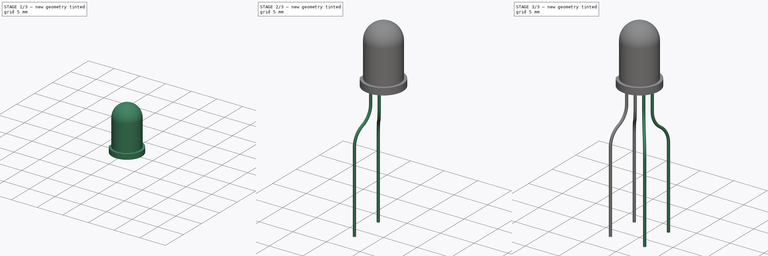
[diagram: build sequence overview — one tinted view per stage of 3, left to right]
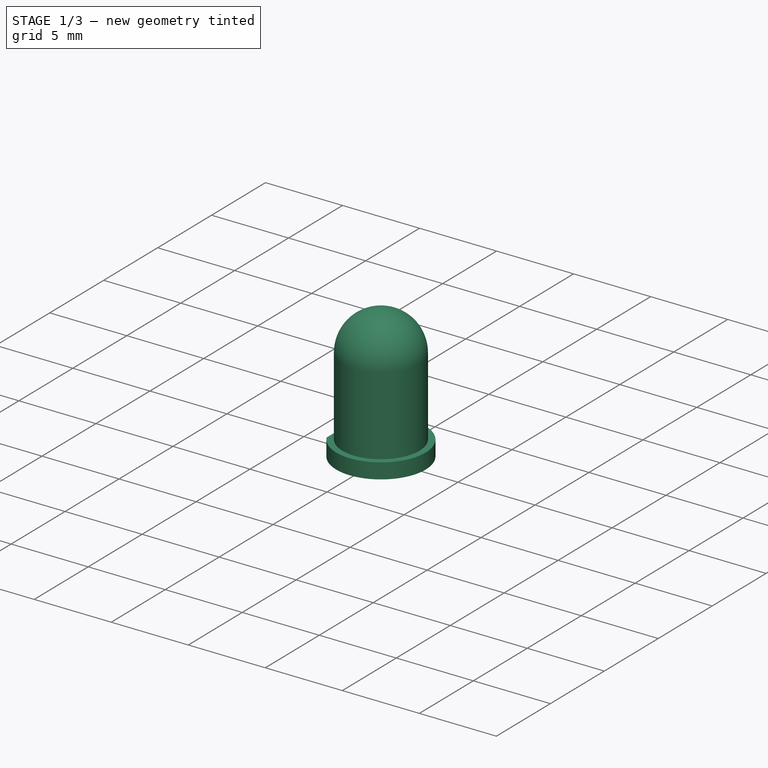
[diagram: stage 1 of 3 — iso view after this stage's code; geometry added in this stage tinted green]
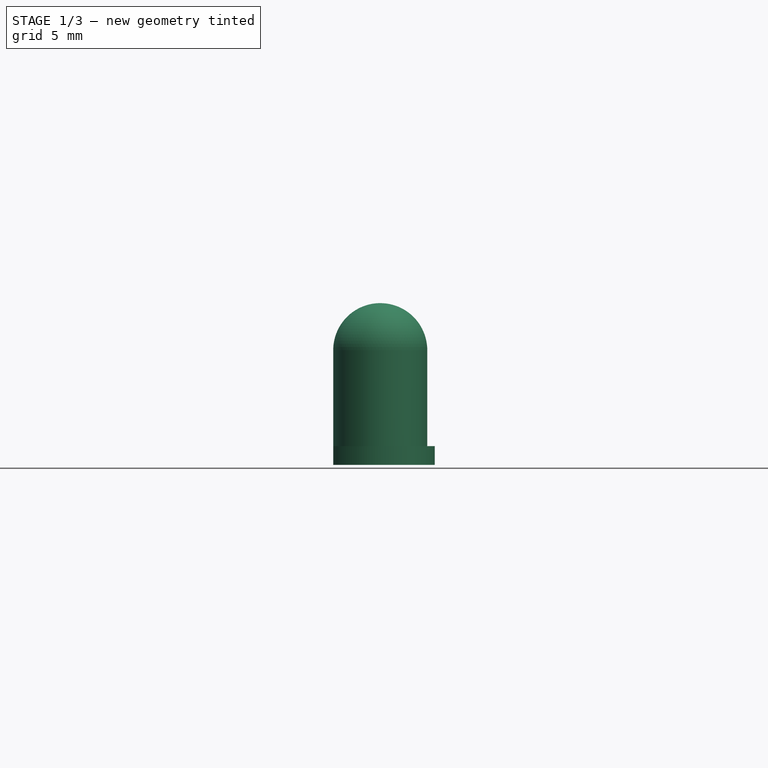
[diagram: stage 1 of 3 — front view after this stage's code; geometry added in this stage tinted green]
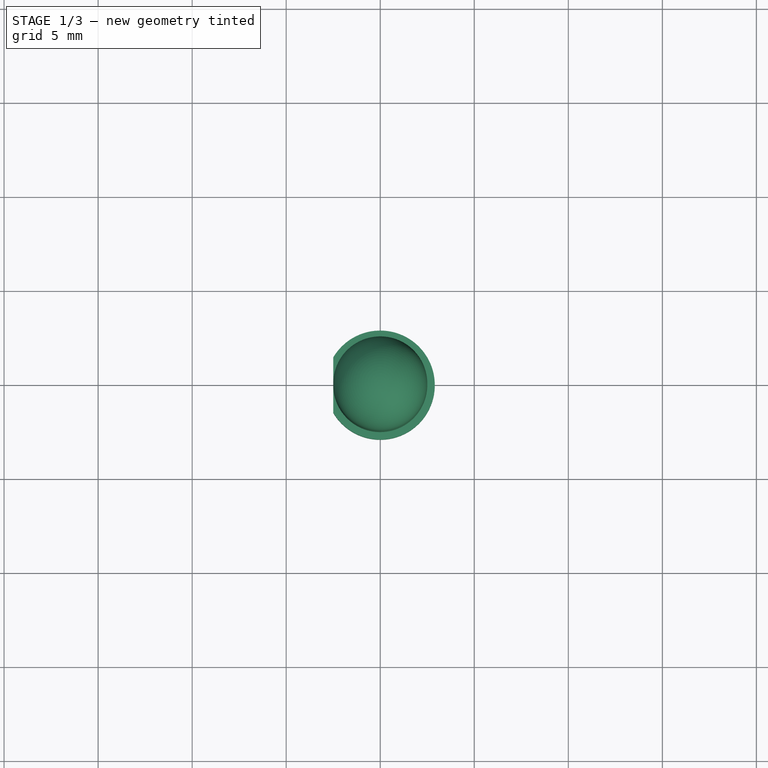
[diagram: stage 1 of 3 — top view after this stage's code; geometry added in this stage tinted green]
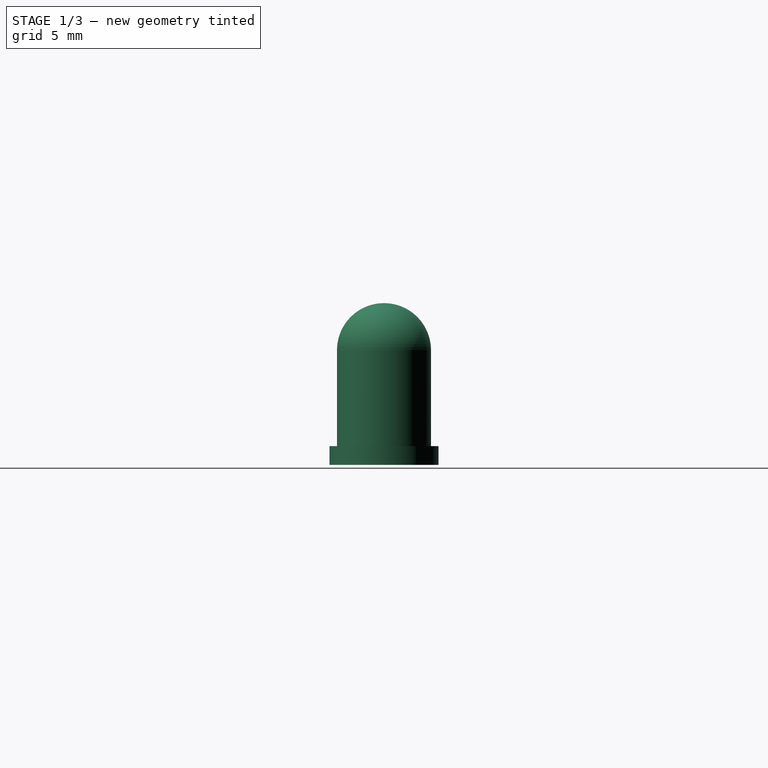
[diagram: stage 1 of 3 — right view after this stage's code; geometry added in this stage tinted green]
FCSTD DOCUMENT  (FreeCAD 2022.709R28846 (Git))
Label: LED_5mm_RGB
License: Other
objects: Sketcher::SketchObject×17, Part::Sweep×4, Part::Feature×1, PartDesign::Pad×1, PartDesign::Plane×1, PartDesign::Revolution×1, PartDesign::Body×1
note: 30 computed .brp shape members not serialized (recipe doc carries the construction recipe); baked Part::Feature solids carry a one-line shape summary decoded from their .brp

FEATURE [Sketcher::SketchObject] Sketch
  ArcFitTolerance = 1e-06
  AttachmentSupport = -> [XY_Plane]
  FullyConstrained = true
  MapMode = 5
  Support = -> [XY_Plane]
  TreeRank = 41
  sketch-geometry (3):
    g0: ArcOfCircle CenterX=0 CenterY=0 CenterZ=0 NormalX=0 NormalY=0 NormalZ=1 AngleXU=0 Radius=2.9 StartAngle=3.67305 EndAngle=8.89332
    g1: Circle [constr] CenterX=0 CenterY=0 CenterZ=0 NormalX=0 NormalY=0 NormalZ=1 AngleXU=0 Radius=2.5
    g2: LineSegment StartX=-2.5 StartY=1.46969 StartZ=0 EndX=-2.5 EndY=-1.46969 EndZ=0
  constraints (8):
    c: Coincident(g0,g-1)
    c: Coincident(g1,g0)
    c: Diameter(g1) = 5
    c: Diameter(g0) = 5.8
    c: Vertical(g2)
    c: Tangent(g2,g1)
    c: Coincident(g0,g2)
    c: Coincident(g0,g2)
FEATURE [PartDesign::Pad] Pad
  ClaimChildren = false
  Direction = (1,1,1)
  Fit = 0
  FitJoin = 0
  InnerFit = 0
  InnerFitJoin = 0
  InnerTaperAngle = 0
  InnerTaperAngleRev = 0
  Length = 1
  Length2 = 100
  Linearize = true
  NewSolid = false
  Profile = -> Sketch
  Suppress = false
  TreeRank = 42
  Type = 0
  _ProfileBasedVersion = 1
FEATURE [PartDesign::Plane] DatumPlane
  AttachmentOffset = pos=(0,0,0) rot=(1,0,0;1.5708rad)
  AttachmentSupport = -> [Pad]
  Length = 50
  MapMode = 5
  MinimumLength = 10
  MinimumWidth = 10
  Placement = pos=(0,0,1) rot=(1,0,0;1.5708rad)
  ResizeMode = 0
  Support = -> [Pad]
  TreeRank = 43
  Width = 10
FEATURE [Sketcher::SketchObject] Sketch001
  ArcFitTolerance = 1e-06
  AttachmentSupport = -> [DatumPlane]
  ExternalGeometry = -> [Pad]
  FullyConstrained = true
  MapMode = 5
  Placement = pos=(0,0,1) rot=(1,0,0;1.5708rad)
  Support = -> [DatumPlane]
  TreeRank = 44
  sketch-geometry (4):
    g0: LineSegment StartX=0 StartY=7.6 StartZ=0 EndX=0 EndY=0 EndZ=0
    g1: LineSegment StartX=0 StartY=0 StartZ=0 EndX=-2.5 EndY=-3e-16 EndZ=0
    g2: LineSegment StartX=-2.5 StartY=-3e-16 StartZ=0 EndX=-2.5 EndY=5.1 EndZ=0
    g3: ArcOfCircle CenterX=0 CenterY=5.1 CenterZ=0 NormalX=0 NormalY=0 NormalZ=1 AngleXU=0 Radius=2.5 StartAngle=1.5708 EndAngle=3.14159
  constraints (10):
    c: PointOnObject(g0,g-2)
    c: Coincident(g0,g-1)
    c: Coincident(g0,g1)
    c: Coincident(g1,g-3)
    c: Coincident(g1,g2)
    c: Vertical(g2)
    c: Tangent(g2,g3) = 1.5708
    c: Coincident(g3,g0)
    c: PointOnObject(g3,g0)
    c: DistanceY(g0,g0) = 7.6
FEATURE [PartDesign::Revolution] Revolution
  Angle = 360
  Axis = (0,2e-16,1)
  Base = (0,0,1)
  BaseFeature = -> Pad
  ClaimChildren = false
  Fit = 0
  FitJoin = 0
  InnerFit = 0
  InnerFitJoin = 0
  NewSolid = false
  Profile = -> Sketch001
  ReferenceAxis = -> Sketch001 [V_Axis]
  Refine = true
  Suppress = false
  TreeRank = 45
  _ProfileBasedVersion = 1
FEATURE [PartDesign::Body] Body
  AutoGroupSolids = false
  ClaimAllChildren = false
  ExportMode = 0
  Group = -> [Sketch,Pad,DatumPlane,Sketch001,Revolution]
  Origin = -> Origin
  Tip = -> Revolution
  TreeRank = 58
  _ExportChildren = -> [Pad,DatumPlane,Revolution]
  _GroupVersion = 1
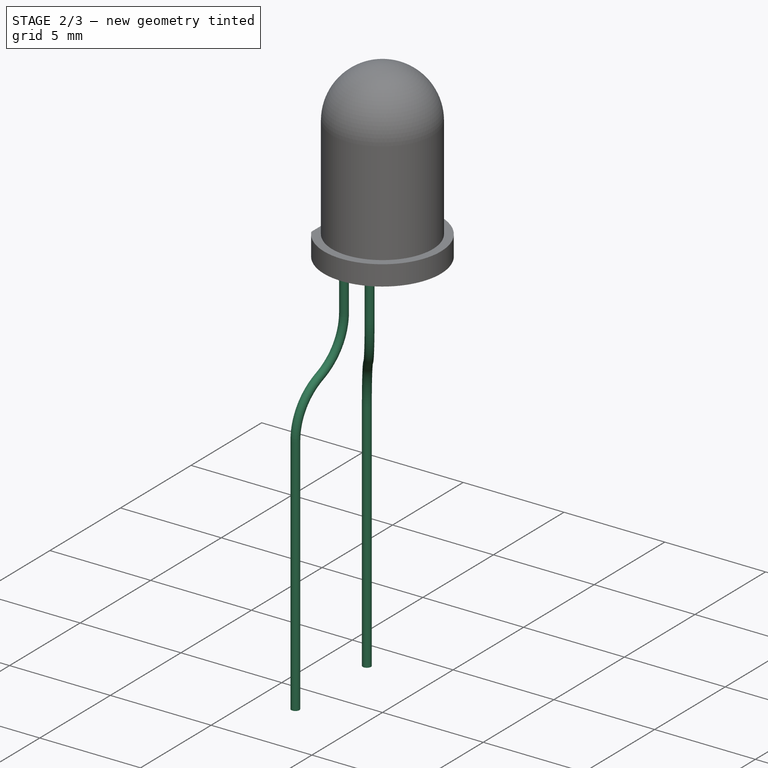
[diagram: stage 2 of 3 — iso view after this stage's code; geometry added in this stage tinted green]
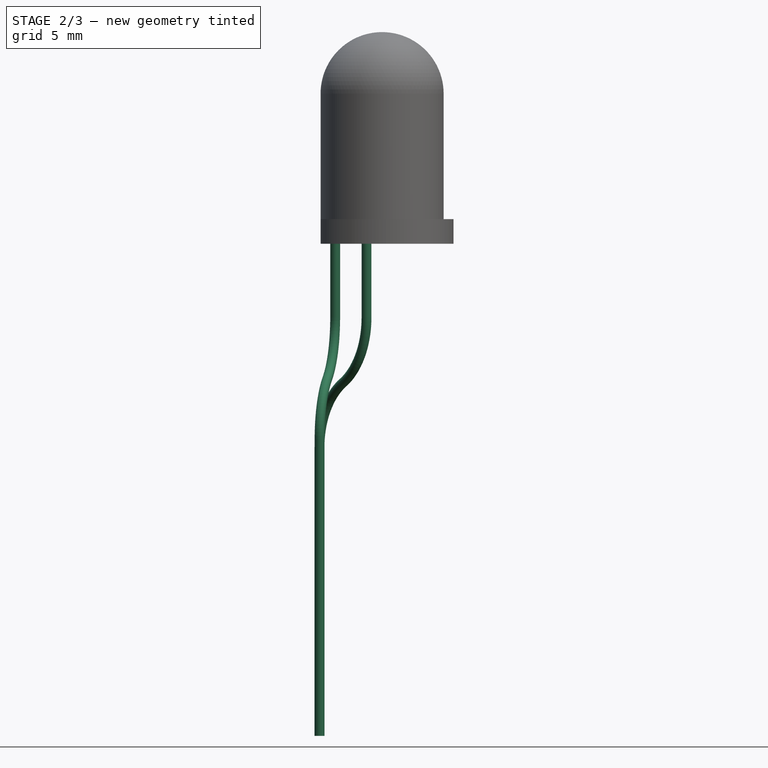
[diagram: stage 2 of 3 — front view after this stage's code; geometry added in this stage tinted green]
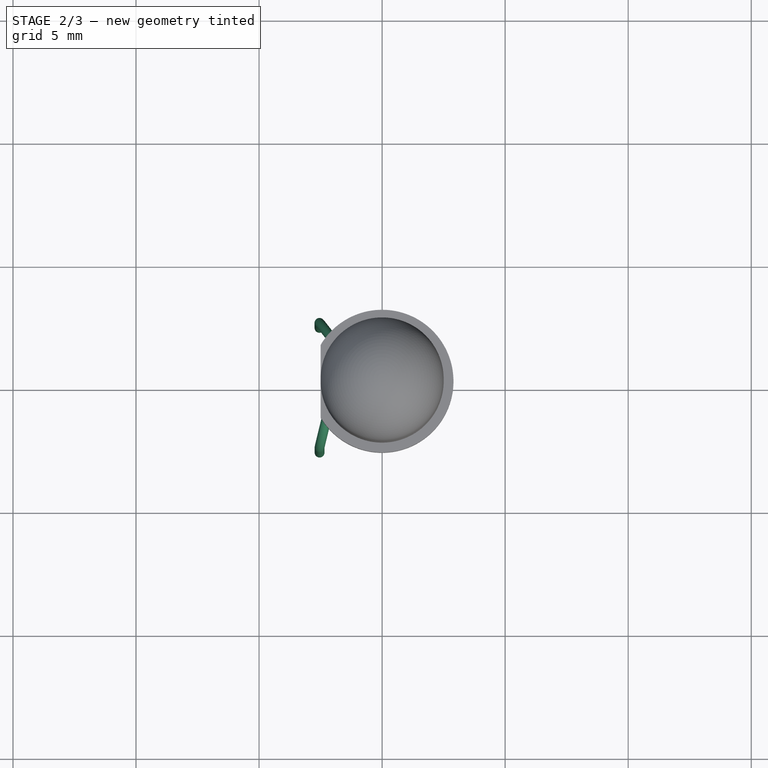
[diagram: stage 2 of 3 — top view after this stage's code; geometry added in this stage tinted green]
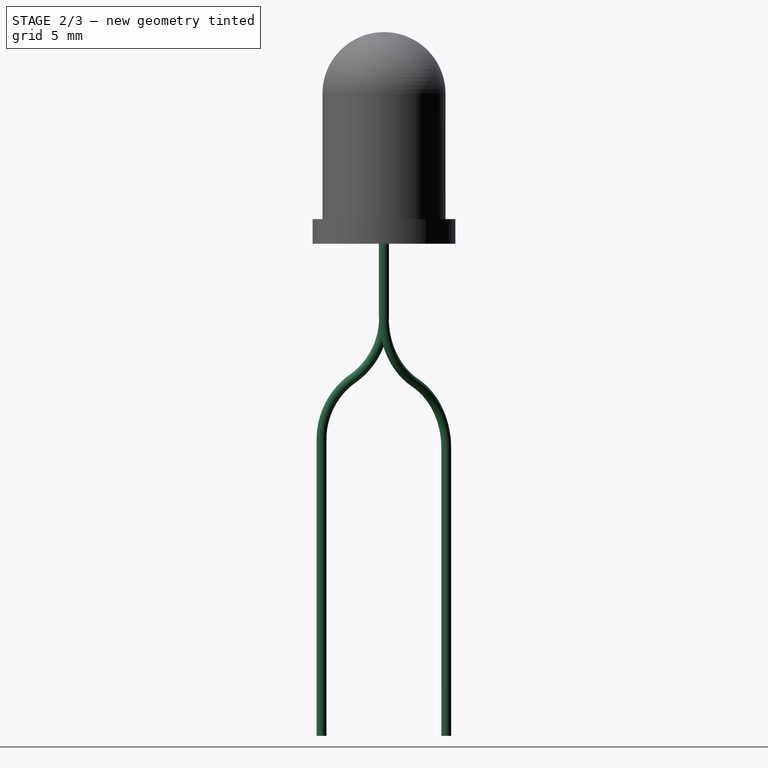
[diagram: stage 2 of 3 — right view after this stage's code; geometry added in this stage tinted green]
FEATURE [Part::Sweep] Sweep002
  Frenet = false
  Placement = pos=(-0.127288,0.3763,-7.1e-15) rot=(0,0,1;0.645772rad)
  Sections = -> [Sketch014]
  Solid = true
  Spine = -> Sketch007 [Edge1,Edge2,Edge3,Edge4]
  Transition = 1
  TreeRank = 56
FEATURE [Part::Sweep] Sweep003
  Frenet = false
  Placement = pos=(-0.0595809,-0.459285,0) rot=(0,0,-1;0.244346rad)
  Sections = -> [Sketch013]
  Solid = true
  Spine = -> Sketch008 [Edge1,Edge2,Edge3,Edge4]
  Transition = 1
  TreeRank = 57
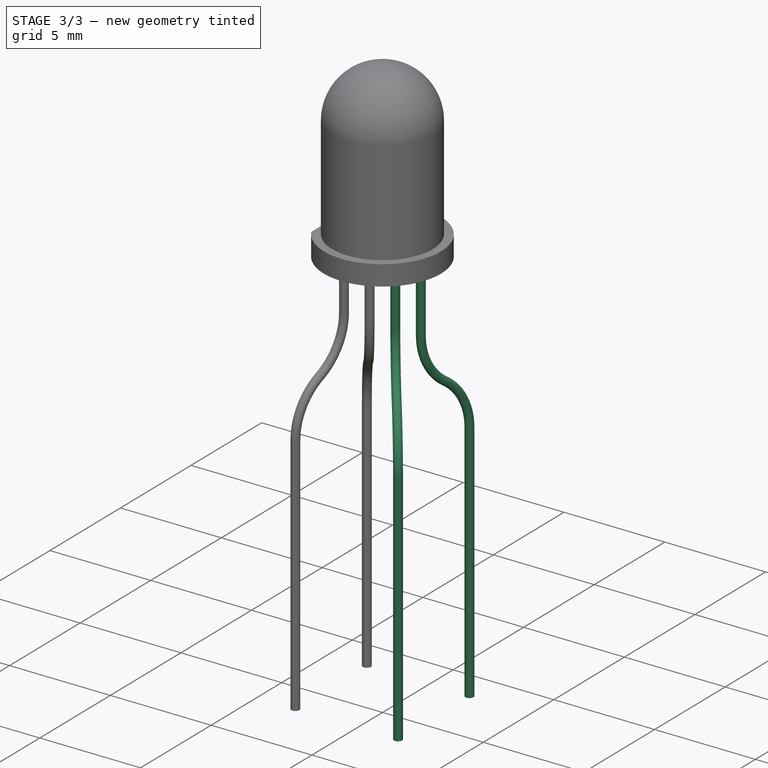
[diagram: stage 3 of 3 — iso view after this stage's code; geometry added in this stage tinted green]
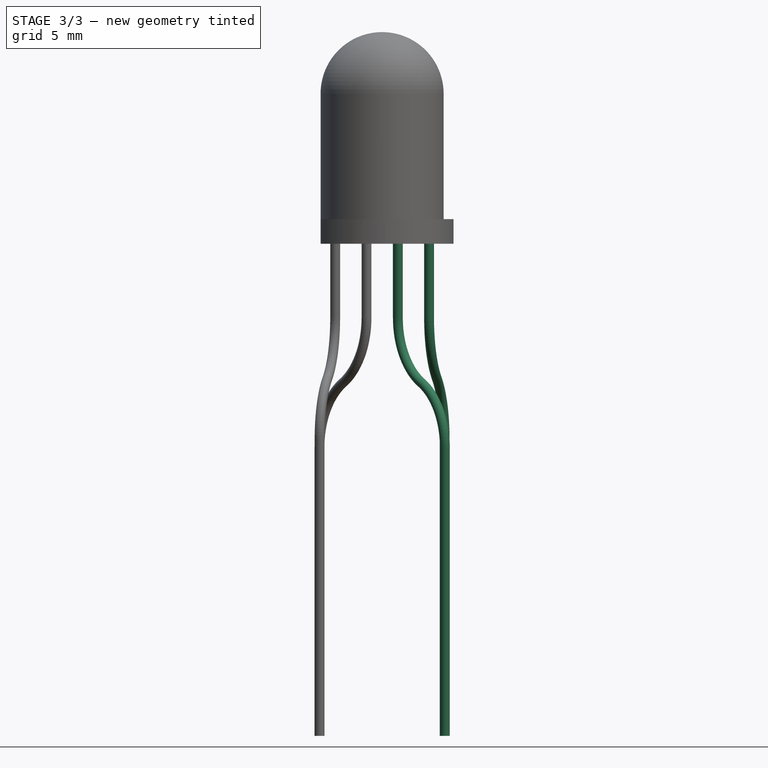
[diagram: stage 3 of 3 — front view after this stage's code; geometry added in this stage tinted green]
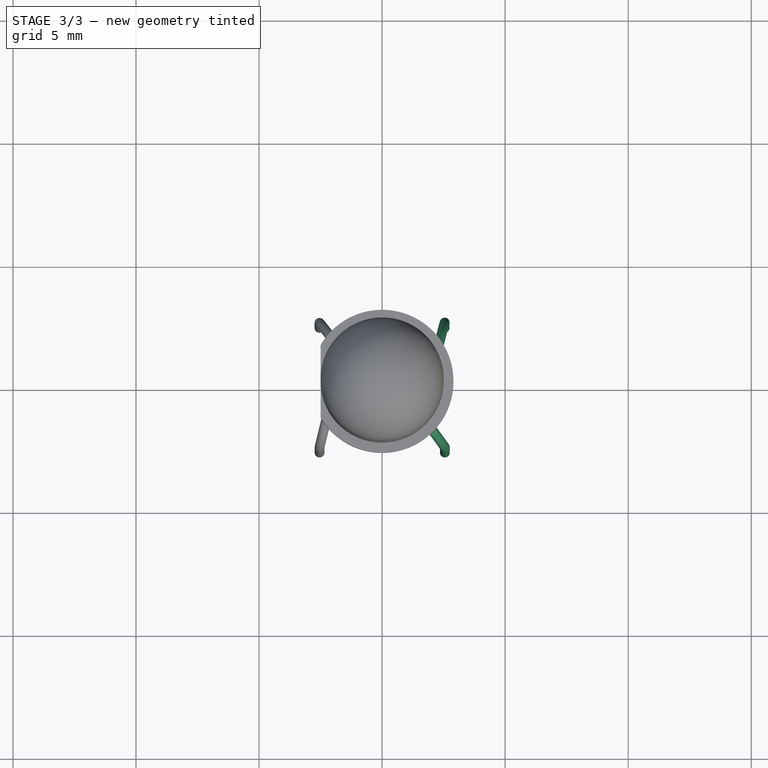
[diagram: stage 3 of 3 — top view after this stage's code; geometry added in this stage tinted green]
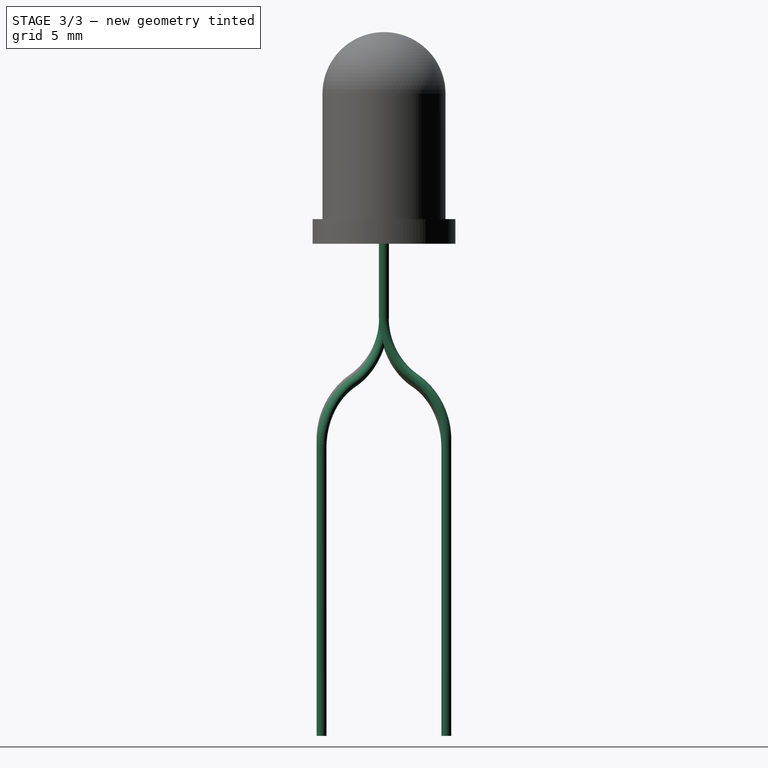
[diagram: stage 3 of 3 — right view after this stage's code; geometry added in this stage tinted green]
FEATURE [Part::Feature] Solid  label="LED_D5.0mm-4_RGB_Staggered_Pins"
  TreeRank = 1
  shape: bbox 5.513 x 5.8 x 15.6 mm, 58 faces (baked)
FEATURE [Sketcher::SketchObject] Sketch002
  ArcFitTolerance = 1e-06
  FullyConstrained = true
  TreeRank = 40
  sketch-geometry (20):
    g0: Circle CenterX=-2.54 CenterY=2.54 CenterZ=0 NormalX=0 NormalY=0 NormalZ=1 AngleXU=0 Radius=0.2
    g1: Circle CenterX=2.54 CenterY=2.54 CenterZ=0 NormalX=0 NormalY=0 NormalZ=1 AngleXU=0 Radius=0.2
    g2: Circle CenterX=2.54 CenterY=-2.54 CenterZ=0 NormalX=0 NormalY=0 NormalZ=1 AngleXU=0 Radius=0.2
    g3: Circle CenterX=-2.54 CenterY=-2.54 CenterZ=0 NormalX=0 NormalY=0 NormalZ=1 AngleXU=0 Radius=0.2
    g4: Circle CenterX=-1.905 CenterY=0 CenterZ=0 NormalX=0 NormalY=0 NormalZ=1 AngleXU=0 Radius=0.2
    g5: Circle CenterX=-0.635 CenterY=0 CenterZ=0 NormalX=0 NormalY=0 NormalZ=1 AngleXU=0 Radius=0.2
    g6: Circle CenterX=0.635 CenterY=0 CenterZ=0 NormalX=0 NormalY=0 NormalZ=1 AngleXU=0 Radius=0.2
    g7: Circle CenterX=1.905 CenterY=0 CenterZ=0 NormalX=0 NormalY=0 NormalZ=1 AngleXU=0 Radius=0.2
    g8: LineSegment StartX=-1.905 StartY=0 StartZ=0 EndX=-1.905 EndY=-2.61817 EndZ=0
    g9: LineSegment StartX=-0.635 StartY=0 StartZ=0 EndX=-0.635 EndY=3.175 EndZ=0
    g10: LineSegment StartX=0.635 StartY=0 StartZ=0 EndX=0.635 EndY=-3.175 EndZ=0
    g11: ArcOfCircle CenterX=-1.905 CenterY=0 CenterZ=0 NormalX=0 NormalY=0 NormalZ=1 AngleXU=0 Radius=2.61817 StartAngle=4.46741 EndAngle=4.71239
    g12: ArcOfCircle CenterX=-0.635 CenterY=0 CenterZ=0 NormalX=0 NormalY=0 NormalZ=1 AngleXU=0 Radius=3.175 StartAngle=1.5708 EndAngle=2.2143
    g13: ArcOfCircle CenterX=0.635 CenterY=0 CenterZ=0 NormalX=0 NormalY=0 NormalZ=1 AngleXU=0 Radius=3.175 StartAngle=4.71239 EndAngle=5.35589
    g14: ArcOfCircle CenterX=1.905 CenterY=0 CenterZ=0 NormalX=0 NormalY=0 NormalZ=1 AngleXU=0 Radius=2.61817 StartAngle=1.32582 EndAngle=1.5708
    g15: LineSegment StartX=-1.905 StartY=0 StartZ=0 EndX=-2.54 EndY=-2.54 EndZ=0
    g16: LineSegment StartX=-0.635 StartY=0 StartZ=0 EndX=-2.54 EndY=2.54 EndZ=0
    g17: LineSegment StartX=0.635 StartY=0 StartZ=0 EndX=2.54 EndY=-2.54 EndZ=0
    g18: LineSegment StartX=1.905 StartY=0 StartZ=0 EndX=2.54 EndY=2.54 EndZ=0
    g19: LineSegment StartX=1.905 StartY=0 StartZ=0 EndX=1.905 EndY=2.61817 EndZ=0
  constraints (48):
    c: Diameter(g3) = 0.4
    c: Equal(g3,g0)
    c: Equal(g3,g1)
    c: Equal(g3,g2)
    c: Symmetric(g0,g1,g-2)
    c: Symmetric(g3,g2,g-2)
    c: Symmetric(g3,g0,g-1)
    c: DistanceX(g0,g1) = 5.08
    c: DistanceY(g3,g0) = 5.08
    c: PointOnObject(g4,g-1)
    c: PointOnObject(g5,g-1)
    c: Equal(g4,g5)
    c: Equal(g5,g6)
    c: Equal(g6,g7)
    c: Equal(g7,g3)
    c: Symmetric(g5,g6,g-2)
    c: Symmetric(g4,g7,g-2)
    c: DistanceX(g5,g6) = 1.27
    c: DistanceX(g4,g5) = 1.27
    c: Coincident(g8,g4)
    c: Vertical(g8)
    c: Coincident(g9,g5)
    c: Vertical(g9)
    c: Coincident(g10,g6)
    c: Vertical(g10)
    c: Coincident(g11,g4)
    c: Coincident(g11,g3)
    c: Coincident(g12,g5)
    c: Coincident(g12,g0)
    c: Coincident(g13,g6)
    c: Coincident(g13,g2)
    c: Coincident(g14,g7)
    c: Coincident(g14,g1)
    c: PointOnObject(g11,g8)
    c: Coincident(g15,g4)
    c: Coincident(g15,g3)
    c: Equal(g15,g8)
    c: Coincident(g16,g5)
    c: Coincident(g16,g0)
    c: Coincident(g12,g9)
    c: Coincident(g17,g6)
    c: Coincident(g17,g2)
    c: Coincident(g13,g10)
    c: Coincident(g18,g7)
    c: Coincident(g18,g1)
    c: Coincident(g19,g7)
    c: Vertical(g19)
    c: Coincident(g14,g19)
FEATURE [Sketcher::SketchObject] Sketch003
  ArcFitTolerance = 1e-06
  ExternalGeometry = -> [Sketch002]
  FullyConstrained = true
  Placement = pos=(0,0,-20) rot=(0,0,1;0rad)
  TreeRank = 18
  sketch-geometry (4):
    g0: Circle CenterX=-0.635 CenterY=3.175 CenterZ=0 NormalX=0 NormalY=0 NormalZ=1 AngleXU=0 Radius=0.2
    g1: Circle CenterX=1.905 CenterY=2.61817 CenterZ=0 NormalX=0 NormalY=0 NormalZ=1 AngleXU=0 Radius=0.2
    g2: Circle CenterX=0.635 CenterY=-3.175 CenterZ=0 NormalX=0 NormalY=0 NormalZ=1 AngleXU=0 Radius=0.2
    g3: Circle CenterX=-1.905 CenterY=-2.61817 CenterZ=0 NormalX=0 NormalY=0 NormalZ=1 AngleXU=0 Radius=0.2
  constraints (8):
    c: Coincident(g0,g-12)
    c: Coincident(g1,g-14)
    c: Coincident(g2,g-10)
    c: Coincident(g3,g-8)
    c: Equal(g3,g2)
    c: Equal(g2,g1)
    c: Equal(g1,g0)
    c: Equal(g0,g-6)
FEATURE [Sketcher::SketchObject] Sketch004
  ArcFitTolerance = 1e-06
  ExternalGeometry = -> [Sketch002]
  FullyConstrained = true
  TreeRank = 19
  sketch-geometry (4):
    g0: Circle CenterX=-1.905 CenterY=0 CenterZ=0 NormalX=0 NormalY=0 NormalZ=1 AngleXU=0 Radius=0.2
    g1: Circle CenterX=-0.635 CenterY=0 CenterZ=0 NormalX=0 NormalY=0 NormalZ=1 AngleXU=0 Radius=0.2
    g2: Circle CenterX=0.635 CenterY=0 CenterZ=0 NormalX=0 NormalY=0 NormalZ=1 AngleXU=0 Radius=0.2
    g3: Circle CenterX=1.905 CenterY=0 CenterZ=0 NormalX=0 NormalY=0 NormalZ=1 AngleXU=0 Radius=0.2
  constraints (8):
    c: Coincident(g0,g-3)
    c: Coincident(g1,g-4)
    c: Coincident(g2,g-5)
    c: Coincident(g3,g-6)
    c: Equal(g3,g2)
    c: Equal(g2,g1)
    c: Equal(g1,g0)
    c: Equal(g0,g-3)
FEATURE [Sketcher::SketchObject] Sketch005
  ArcFitTolerance = 1e-06
  ExternalGeometry = -> [Sketch003,Sketch002]
  FullyConstrained = true
  Placement = pos=(0.635,0,0) rot=(0.57735,0.57735,0.57735;2.0944rad)
  TreeRank = 20
  sketch-geometry (4):
    g0: LineSegment StartX=0 StartY=0 StartZ=0 EndX=0 EndY=-3 EndZ=0
    g1: ArcOfCircle CenterX=-3 CenterY=-3 CenterZ=0 NormalX=0 NormalY=0 NormalZ=1 AngleXU=0 Radius=3 StartAngle=5.20262 EndAngle=6.28319
    g2: ArcOfCircle CenterX=-0.175 CenterY=-8.29333 CenterZ=0 NormalX=0 NormalY=0 NormalZ=1 AngleXU=0 Radius=3 StartAngle=2.06103 EndAngle=3.14159
    g3: LineSegment StartX=-3.175 StartY=-8.29333 StartZ=0 EndX=-3.175 EndY=-20 EndZ=0
  constraints (10):
    c: Coincident(g-1,g0)
    c: PointOnObject(g0,g-2)
    c: Tangent(g0,g1) = 1.5708
    c: Tangent(g1,g2) = 1.5708
    c: Equal(g2,g1)
    c: Tangent(g2,g3) = -1.5708
    c: Symmetric(g-3,g-3,g3)
    c: Vertical(g3)
    c: DistanceY(g0,g0) = 3
    c: Radius(g2) = 3
FEATURE [Sketcher::SketchObject] Sketch006
  ArcFitTolerance = 1e-06
  ExternalGeometry = -> [Sketch003]
  FullyConstrained = true
  Placement = pos=(1.905,0,0) rot=(0.57735,0.57735,0.57735;2.0944rad)
  TreeRank = 33
  sketch-geometry (4):
    g0: LineSegment StartX=0 StartY=0 StartZ=0 EndX=0 EndY=-3 EndZ=0
    g1: ArcOfCircle CenterX=3 CenterY=-3 CenterZ=0 NormalX=0 NormalY=0 NormalZ=1 AngleXU=0 Radius=3 StartAngle=3.14159 EndAngle=4.11361
    g2: ArcOfCircle CenterX=-0.381828 CenterY=-7.95613 CenterZ=0 NormalX=0 NormalY=0 NormalZ=1 AngleXU=0 Radius=3 StartAngle=1e-16 EndAngle=0.972013
    g3: LineSegment StartX=2.61817 StartY=-7.95613 StartZ=0 EndX=2.61817 EndY=-20 EndZ=0
  constraints (10):
    c: Coincident(g-1,g0)
    c: PointOnObject(g0,g-2)
    c: Tangent(g0,g1) = -1.5708
    c: Tangent(g1,g2) = 1.5708
    c: Symmetric(g-3,g-3,g3)
    c: Vertical(g3)
    c: Tangent(g2,g3) = 1.5708
    c: Radius(g2) = 3
    c: Equal(g2,g1)
    c: DistanceY(g0,g0) = 3
FEATURE [Sketcher::SketchObject] Sketch007
  ArcFitTolerance = 1e-06
  ExternalGeometry = -> [Sketch002,Sketch003]
  FullyConstrained = true
  Placement = pos=(-0.635,0,0) rot=(0.57735,0.57735,0.57735;2.0944rad)
  TreeRank = 22
  sketch-geometry (4):
    g0: LineSegment StartX=0 StartY=0 StartZ=0 EndX=0 EndY=-3 EndZ=0
    g1: ArcOfCircle CenterX=3 CenterY=-3 CenterZ=0 NormalX=0 NormalY=0 NormalZ=1 AngleXU=0 Radius=3 StartAngle=3.14159 EndAngle=4.22215
    g2: ArcOfCircle CenterX=0.175 CenterY=-8.29333 CenterZ=0 NormalX=0 NormalY=0 NormalZ=1 AngleXU=0 Radius=3 StartAngle=2.6e-15 EndAngle=1.08056
    g3: LineSegment StartX=3.175 StartY=-8.29333 StartZ=0 EndX=3.175 EndY=-20 EndZ=0
  constraints (10):
    c: Coincident(g-1,g0)
    c: Vertical(g0)
    c: Tangent(g0,g1) = -1.5708
    c: Tangent(g1,g2) = 1.5708
    c: Symmetric(g-4,g-4,g3)
    c: Vertical(g3)
    c: DistanceY(g0,g0) = 3
    c: Radius(g1) = 3
    c: Equal(g1,g2)
    c: Tangent(g2,g3) = 1.5708
FEATURE [Sketcher::SketchObject] Sketch008
  ArcFitTolerance = 1e-06
  ExternalGeometry = -> [Sketch002,Sketch003]
  FullyConstrained = true
  Placement = pos=(-1.905,0,0) rot=(0.57735,0.57735,0.57735;2.0944rad)
  TreeRank = 23
  sketch-geometry (4):
    g0: LineSegment StartX=0 StartY=0 StartZ=0 EndX=0 EndY=-3 EndZ=0
    g1: ArcOfCircle CenterX=-3 CenterY=-3 CenterZ=0 NormalX=0 NormalY=0 NormalZ=1 AngleXU=0 Radius=3 StartAngle=5.31117 EndAngle=6.28319
    g2: ArcOfCircle CenterX=0.381828 CenterY=-7.95613 CenterZ=0 NormalX=0 NormalY=0 NormalZ=1 AngleXU=0 Radius=3 StartAngle=2.16958 EndAngle=3.14159
    g3: LineSegment StartX=-2.61817 StartY=-7.95613 StartZ=0 EndX=-2.61817 EndY=-20 EndZ=0
  constraints (10):
    c: Coincident(g-1,g0)
    c: PointOnObject(g0,g-2)
    c: Tangent(g0,g1) = 1.5708
    c: Tangent(g1,g2) = 1.5708
    c: Symmetric(g-4,g-4,g3)
    c: Vertical(g3)
    c: Tangent(g2,g3) = -1.5708
    c: Radius(g2) = 3
    c: Equal(g2,g1)
    c: DistanceY(g0,g0) = 3
FEATURE [Sketcher::SketchObject] Sketch009
  ArcFitTolerance = 1e-06
  ExternalGeometry = -> [Sketch002]
  FullyConstrained = true
  Placement = pos=(0,0,-20) rot=(0,0,1;0rad)
  TreeRank = 24
  sketch-geometry (1):
    g0: Circle CenterX=-1.905 CenterY=-2.61817 CenterZ=0 NormalX=0 NormalY=0 NormalZ=1 AngleXU=0 Radius=0.2
  constraints (2):
    c: Coincident(g0,g-8)
    c: Equal(g0,g-6)
FEATURE [Sketcher::SketchObject] Sketch010
  ArcFitTolerance = 1e-06
  ExternalGeometry = -> [Sketch002]
  FullyConstrained = true
  Placement = pos=(0,0,-20) rot=(0,0,1;0rad)
  TreeRank = 25
  sketch-geometry (1):
    g0: Circle CenterX=0.635 CenterY=-3.175 CenterZ=0 NormalX=0 NormalY=0 NormalZ=1 AngleXU=0 Radius=0.2
  constraints (2):
    c: Coincident(g0,g-10)
    c: Equal(g0,g-5)
FEATURE [Sketcher::SketchObject] Sketch011
  ArcFitTolerance = 1e-06
  ExternalGeometry = -> [Sketch002]
  FullyConstrained = true
  Placement = pos=(0,0,-20) rot=(0,0,1;0rad)
  TreeRank = 26
  sketch-geometry (1):
    g0: Circle CenterX=-0.635 CenterY=3.175 CenterZ=0 NormalX=0 NormalY=0 NormalZ=1 AngleXU=0 Radius=0.2
  constraints (2):
    c: Coincident(g0,g-12)
    c: Equal(g0,g-6)
FEATURE [Sketcher::SketchObject] Sketch012
  ArcFitTolerance = 1e-06
  ExternalGeometry = -> [Sketch002]
  FullyConstrained = true
  Placement = pos=(0,0,-20) rot=(0,0,1;0rad)
  TreeRank = 35
  sketch-geometry (1):
    g0: Circle CenterX=1.905 CenterY=2.61817 CenterZ=0 NormalX=0 NormalY=0 NormalZ=1 AngleXU=0 Radius=0.2
  constraints (2):
    c: Coincident(g0,g-14)
    c: Equal(g0,g-4)
FEATURE [Sketcher::SketchObject] Sketch013
  ArcFitTolerance = 1e-06
  ExternalGeometry = -> [Sketch002]
  FullyConstrained = true
  TreeRank = 28
  sketch-geometry (1):
    g0: Circle CenterX=-1.905 CenterY=0 CenterZ=0 NormalX=0 NormalY=0 NormalZ=1 AngleXU=0 Radius=0.2
  constraints (2):
    c: Coincident(g0,g-3)
    c: Equal(g0,g-3)
FEATURE [Sketcher::SketchObject] Sketch014
  ArcFitTolerance = 1e-06
  ExternalGeometry = -> [Sketch002]
  FullyConstrained = true
  TreeRank = 29
  sketch-geometry (1):
    g0: Circle CenterX=-0.635 CenterY=0 CenterZ=0 NormalX=0 NormalY=0 NormalZ=1 AngleXU=0 Radius=0.2
  constraints (2):
    c: Coincident(g0,g-4)
    c: Equal(g0,g-4)
FEATURE [Sketcher::SketchObject] Sketch015
  ArcFitTolerance = 1e-06
  ExternalGeometry = -> [Sketch002]
  FullyConstrained = true
  TreeRank = 30
  sketch-geometry (1):
    g0: Circle CenterX=0.635 CenterY=0 CenterZ=0 NormalX=0 NormalY=0 NormalZ=1 AngleXU=0 Radius=0.2
  constraints (2):
    c: Coincident(g0,g-5)
    c: Equal(g0,g-5)
FEATURE [Sketcher::SketchObject] Sketch016
  ArcFitTolerance = 1e-06
  ExternalGeometry = -> [Sketch002]
  FullyConstrained = true
  TreeRank = 34
  sketch-geometry (1):
    g0: Circle CenterX=1.905 CenterY=0 CenterZ=0 NormalX=0 NormalY=0 NormalZ=1 AngleXU=0 Radius=0.2
  constraints (2):
    c: Coincident(g0,g-6)
    c: Equal(g-6,g0)
FEATURE [Part::Sweep] Sweep
  Frenet = false
  Placement = pos=(0.0592517,0.455224,0) rot=(0,0,-1;0.244346rad)
  Sections = -> [Sketch016]
  Solid = true
  Spine = -> Sketch006 [Edge1,Edge2,Edge3,Edge4]
  Transition = 1
  TreeRank = 54
FEATURE [Part::Sweep] Sweep001
  Frenet = false
  Placement = pos=(0.132628,-0.384024,-3.6e-15) rot=(0,0,1;0.645772rad)
  Sections = -> [Sketch015]
  Solid = true
  Spine = -> Sketch005 [Edge1,Edge2,Edge3,Edge4]
  Transition = 1
  TreeRank = 55
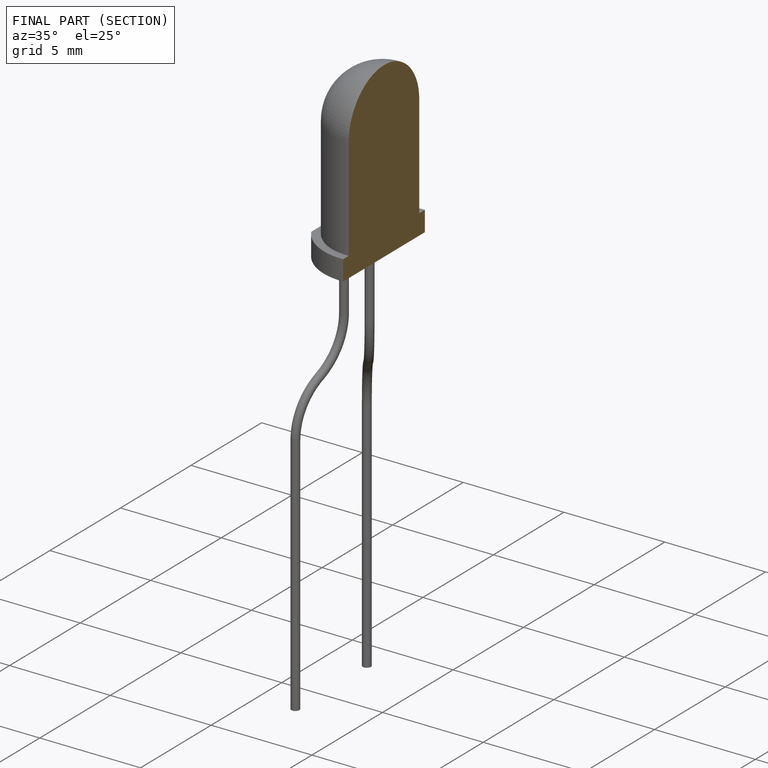
[diagram: finished part — half-section view (interior)]
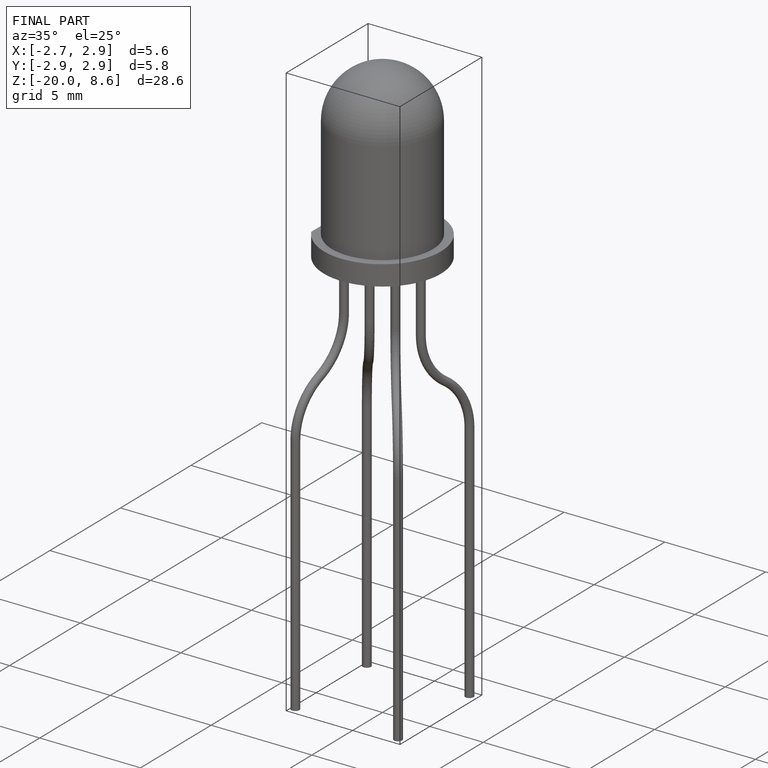
[diagram: finished part — iso view with bounding-box wireframe]
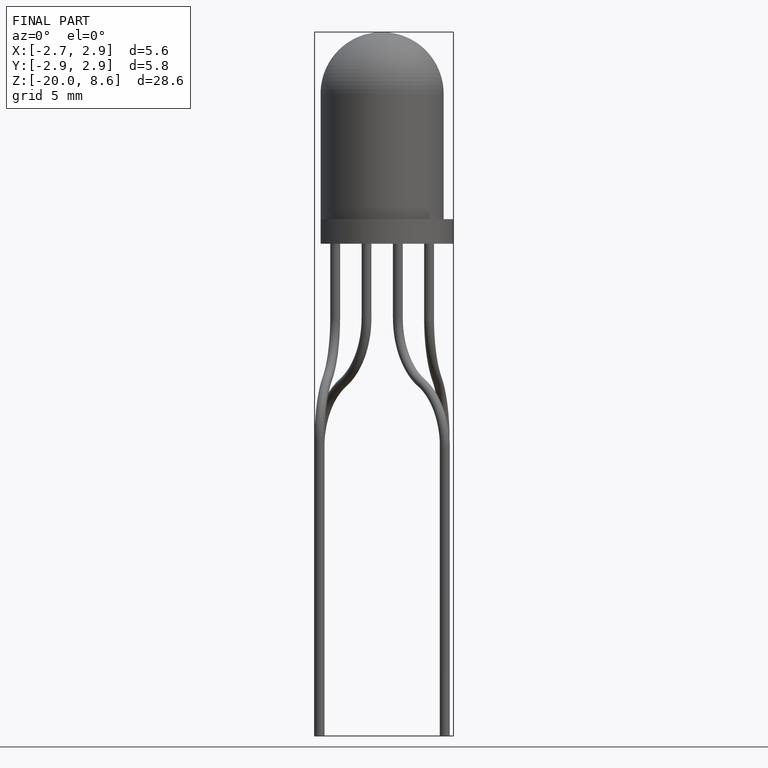
[diagram: finished part — front view with bounding-box wireframe]
